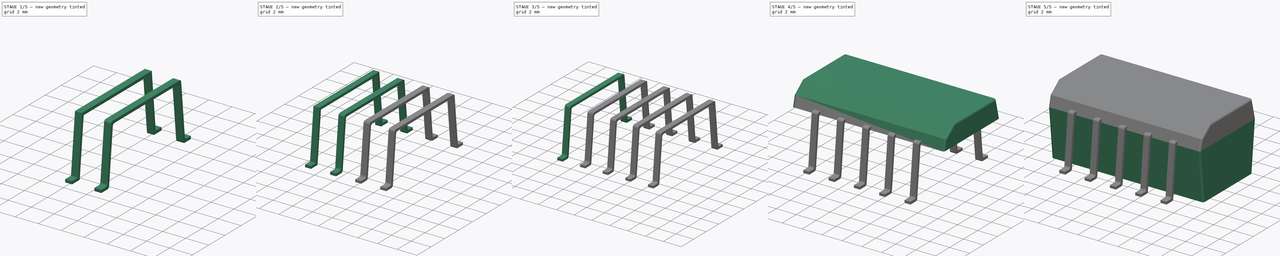
[diagram: build sequence overview — one tinted view per stage of 5, left to right]
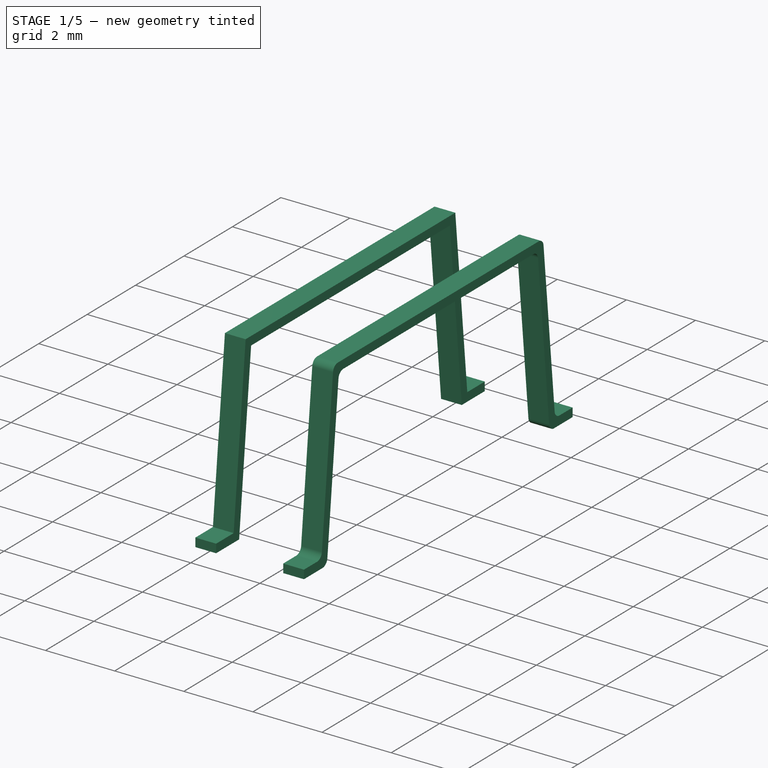
[diagram: stage 1 of 5 — iso view after this stage's code; geometry added in this stage tinted green]
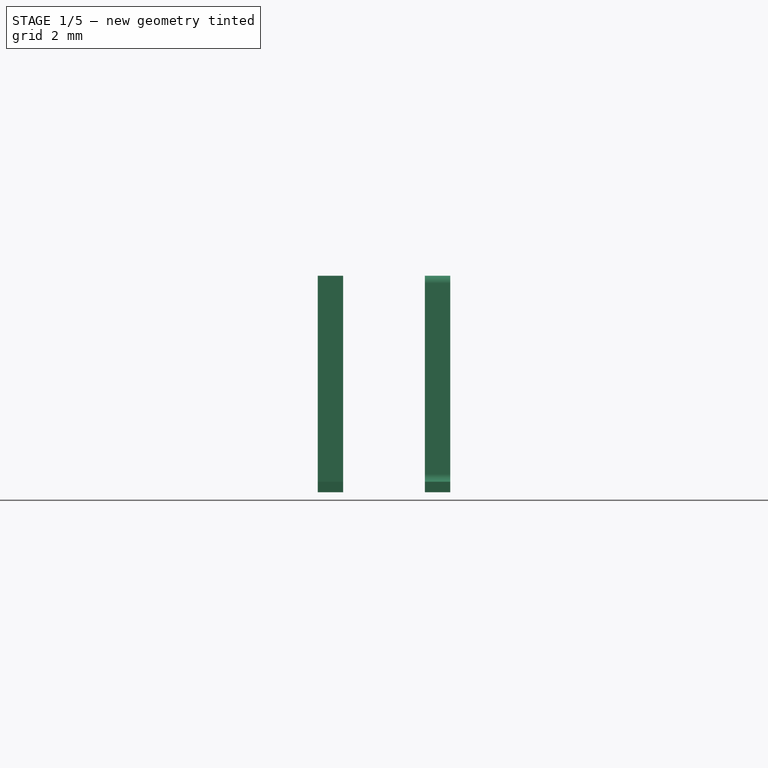
[diagram: stage 1 of 5 — front view after this stage's code; geometry added in this stage tinted green]
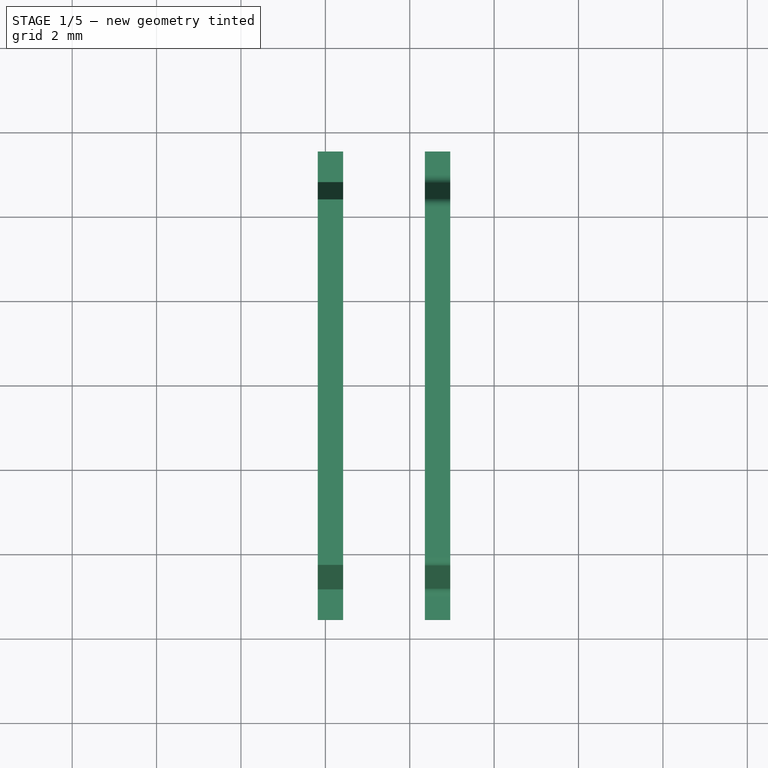
[diagram: stage 1 of 5 — top view after this stage's code; geometry added in this stage tinted green]
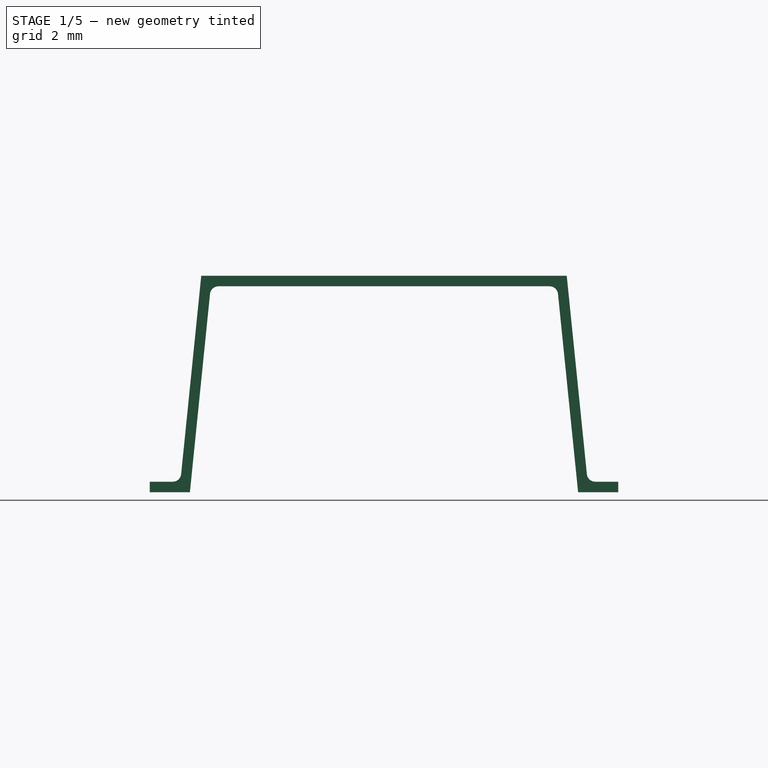
[diagram: stage 1 of 5 — right view after this stage's code; geometry added in this stage tinted green]
FCSTD DOCUMENT  (FreeCAD 0.16R6433 (Git))
Label: TSM-2415D
License: All rights reserved
LicenseURL: http://en.wikipedia.org/wiki/All_rights_reserved
objects: PartDesign::Fillet×8, Sketcher::SketchObject×7, PartDesign::Pad×7, Part::Part2DObjectPython×3, PartDesign::Chamfer×1, Part::MultiFuse×1
note: 34 computed .brp shape members not serialized (recipe doc carries the construction recipe); baked Part::Feature solids carry a one-line shape summary decoded from their .brp

FEATURE [Sketcher::SketchObject] Sketch005
  Placement = pos=(10.12,0,0) rot=(0.57735,0.57735,0.57735;2.0944rad)
  sketch-geometry (13):
    g0: LineSegment StartX=-5.55 StartY=0.25 StartZ=0 EndX=-4.82593 EndY=0.25 EndZ=0
    g1: LineSegment StartX=-4.82593 StartY=0.25 StartZ=0 EndX=-4.33094 EndY=5.1304 EndZ=0
    g2: LineSegment StartX=-4.33094 StartY=5.1304 StartZ=0 EndX=4.33094 EndY=5.1304 EndZ=0
    g3: LineSegment StartX=4.33094 StartY=5.1304 StartZ=0 EndX=4.82593 EndY=0.25 EndZ=0
    g4: LineSegment StartX=4.82593 StartY=0.25 StartZ=0 EndX=5.55 EndY=0.25 EndZ=0
    g5: LineSegment StartX=5.55 StartY=0.25 StartZ=0 EndX=5.55 EndY=0 EndZ=0
    g6: LineSegment StartX=5.55 StartY=0 StartZ=0 EndX=4.6 EndY=0 EndZ=0
    g7: LineSegment StartX=4.6 StartY=0 StartZ=0 EndX=4.10501 EndY=4.8804 EndZ=0
    g8: LineSegment StartX=4.10501 StartY=4.8804 StartZ=0 EndX=-4.10501 EndY=4.8804 EndZ=0
    g9: LineSegment StartX=-4.10501 StartY=4.8804 StartZ=0 EndX=-4.6 EndY=0 EndZ=0
    g10: LineSegment StartX=-4.6 StartY=0 StartZ=0 EndX=-5.55 EndY=0 EndZ=0
    g11: LineSegment StartX=-5.55 StartY=0 StartZ=0 EndX=-5.55 EndY=0.25 EndZ=0
    g12: LineSegment [constr] StartX=-4.44066 StartY=1.57101 StartZ=0 EndX=-4.68939 EndY=1.59623 EndZ=0
  constraints (32):
    c: Coincident(g0,g1)
    c: Coincident(g1,g2)
    c: Coincident(g2,g3)
    c: Coincident(g3,g4)
    c: Coincident(g4,g5)
    c: Coincident(g5,g6)
    c: Coincident(g6,g7)
    c: Coincident(g7,g8)
    c: Coincident(g8,g9)
    c: Coincident(g9,g10)
    c: Coincident(g10,g11)
    c: Coincident(g11,g0)
    c: Vertical(g11)
    c: Vertical(g5)
    c: Symmetric(g6,g9,g-2)
    c: PointOnObject(g9,g-1)
    c: DistanceX(g9,g6) = 9.2
    c: Symmetric(g8,g7,g-2)
    c: Symmetric(g1,g2,g-2)
    c: Symmetric(g0,g3,g-2)
    c: Horizontal(g0)
    c: Symmetric(g0,g4,g-2)
    c: Horizontal(g10)
    c: Symmetric(g5,g10,g-2)
    c: DistanceX(g10,g5) = 11.1
    c: DistanceY(g11) = 0.25
    c: DistanceY(g8,g1) = 0.25
    c: PointOnObject(g12,g1)
    c: Perpendicular(g1,g12)
    c: PointOnObject(g12,g9)
    c: Parallel(g9,g1)
    c: Distance(g12) = 0.25
FEATURE [PartDesign::Pad] Pad005
  Length = 0.6
  Length2 = 100
  Midplane = true
  Placement = pos=(10.12,0,0) rot=(0.57735,0.57735,0.57735;2.0944rad)
  Sketch = -> Sketch005
  Type = 0
FEATURE [Sketcher::SketchObject] Sketch006
  Placement = pos=(12.66,0,0) rot=(0.57735,0.57735,0.57735;2.0944rad)
  sketch-geometry (13):
    g0: LineSegment StartX=-5.55 StartY=0.25 StartZ=0 EndX=-4.82593 EndY=0.25 EndZ=0
    g1: LineSegment StartX=-4.82593 StartY=0.25 StartZ=0 EndX=-4.33094 EndY=5.1304 EndZ=0
    g2: LineSegment StartX=-4.33094 StartY=5.1304 StartZ=0 EndX=4.33094 EndY=5.1304 EndZ=0
    g3: LineSegment StartX=4.33094 StartY=5.1304 StartZ=0 EndX=4.82593 EndY=0.25 EndZ=0
    g4: LineSegment StartX=4.82593 StartY=0.25 StartZ=0 EndX=5.55 EndY=0.25 EndZ=0
    g5: LineSegment StartX=5.55 StartY=0.25 StartZ=0 EndX=5.55 EndY=0 EndZ=0
    g6: LineSegment StartX=5.55 StartY=0 StartZ=0 EndX=4.6 EndY=0 EndZ=0
    g7: LineSegment StartX=4.6 StartY=0 StartZ=0 EndX=4.10501 EndY=4.8804 EndZ=0
    g8: LineSegment StartX=4.10501 StartY=4.8804 StartZ=0 EndX=-4.10501 EndY=4.8804 EndZ=0
    g9: LineSegment StartX=-4.10501 StartY=4.8804 StartZ=0 EndX=-4.6 EndY=0 EndZ=0
    g10: LineSegment StartX=-4.6 StartY=0 StartZ=0 EndX=-5.55 EndY=0 EndZ=0
    g11: LineSegment StartX=-5.55 StartY=0 StartZ=0 EndX=-5.55 EndY=0.25 EndZ=0
    g12: LineSegment [constr] StartX=-4.44066 StartY=1.57101 StartZ=0 EndX=-4.68939 EndY=1.59623 EndZ=0
  constraints (32):
    c: Coincident(g0,g1)
    c: Coincident(g1,g2)
    c: Coincident(g2,g3)
    c: Coincident(g3,g4)
    c: Coincident(g4,g5)
    c: Coincident(g5,g6)
    c: Coincident(g6,g7)
    c: Coincident(g7,g8)
    c: Coincident(g8,g9)
    c: Coincident(g9,g10)
    c: Coincident(g10,g11)
    c: Coincident(g11,g0)
    c: Vertical(g11)
    c: Vertical(g5)
    c: Symmetric(g6,g9,g-2)
    c: PointOnObject(g9,g-1)
    c: DistanceX(g9,g6) = 9.2
    c: Symmetric(g8,g7,g-2)
    c: Symmetric(g1,g2,g-2)
    c: Symmetric(g0,g3,g-2)
    c: Horizontal(g0)
    c: Symmetric(g0,g4,g-2)
    c: Horizontal(g10)
    c: Symmetric(g5,g10,g-2)
    c: DistanceX(g10,g5) = 11.1
    c: DistanceY(g11) = 0.25
    c: DistanceY(g8,g1) = 0.25
    c: PointOnObject(g12,g1)
    c: Perpendicular(g1,g12)
    c: PointOnObject(g12,g9)
    c: Parallel(g9,g1)
    c: Distance(g12) = 0.25
FEATURE [PartDesign::Pad] Pad006
  Length = 0.6
  Length2 = 100
  Midplane = true
  Placement = pos=(12.66,0,0) rot=(0.57735,0.57735,0.57735;2.0944rad)
  Sketch = -> Sketch006
  Type = 0
FEATURE [PartDesign::Fillet] Fillet007  label="patilla004"
  Base = -> Pad006 [Edge8,Edge5,Edge23,Edge26,Edge20,Edge29,Edge11,Edge2]
  Placement = pos=(12.66,0,0) rot=(0.57735,0.57735,0.57735;2.0944rad)
  Radius = 0.2
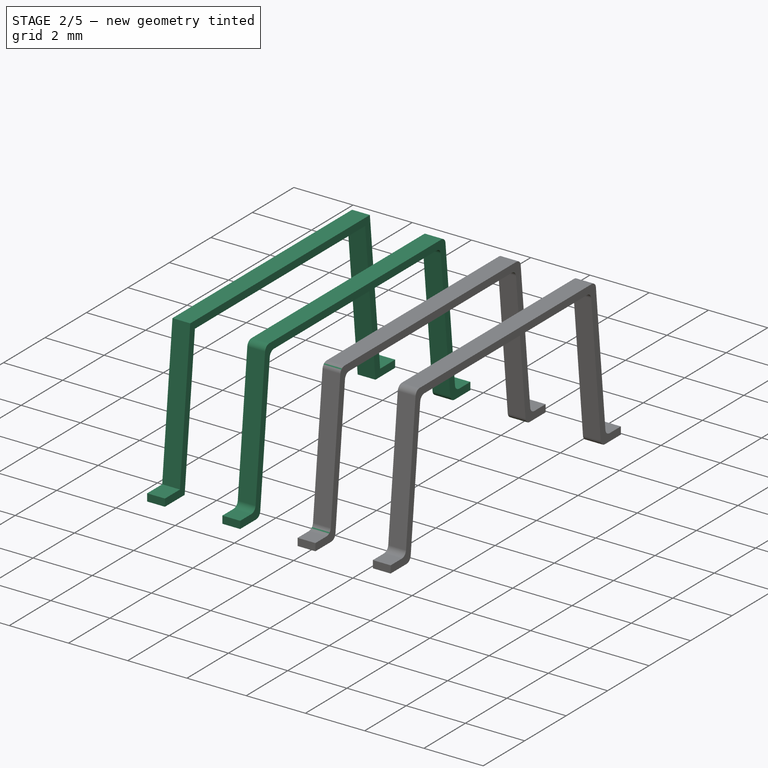
[diagram: stage 2 of 5 — iso view after this stage's code; geometry added in this stage tinted green]
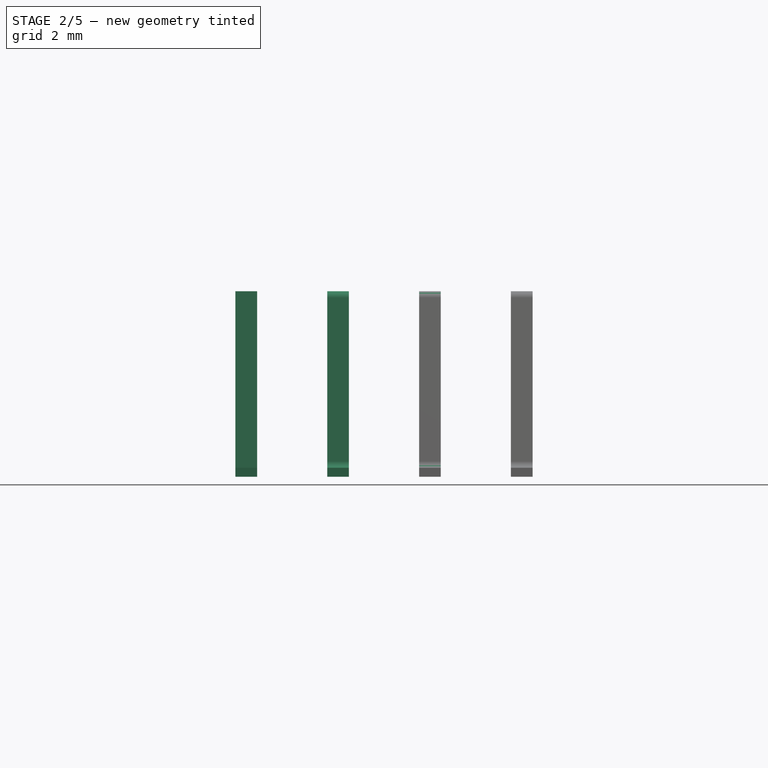
[diagram: stage 2 of 5 — front view after this stage's code; geometry added in this stage tinted green]
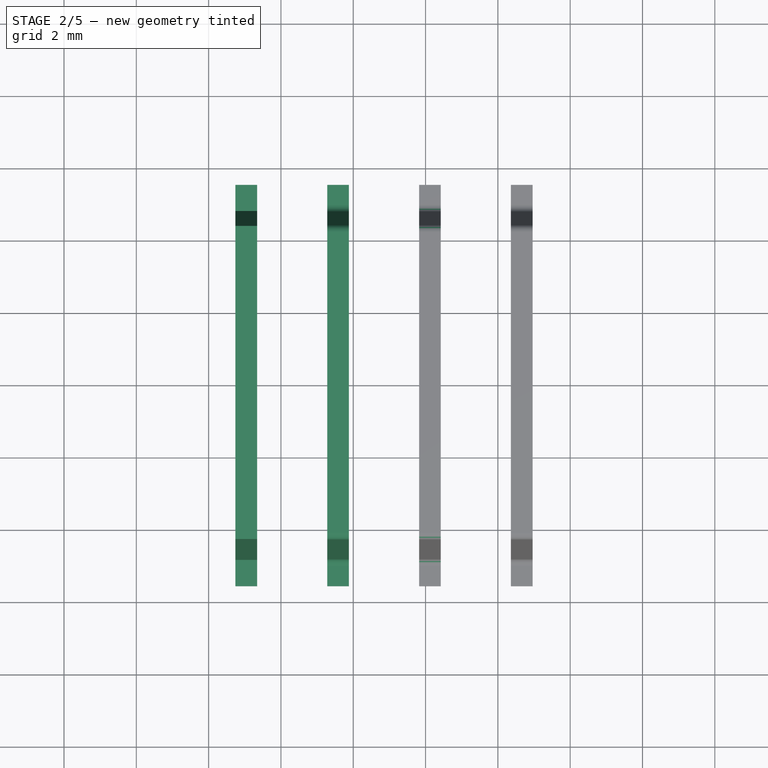
[diagram: stage 2 of 5 — top view after this stage's code; geometry added in this stage tinted green]
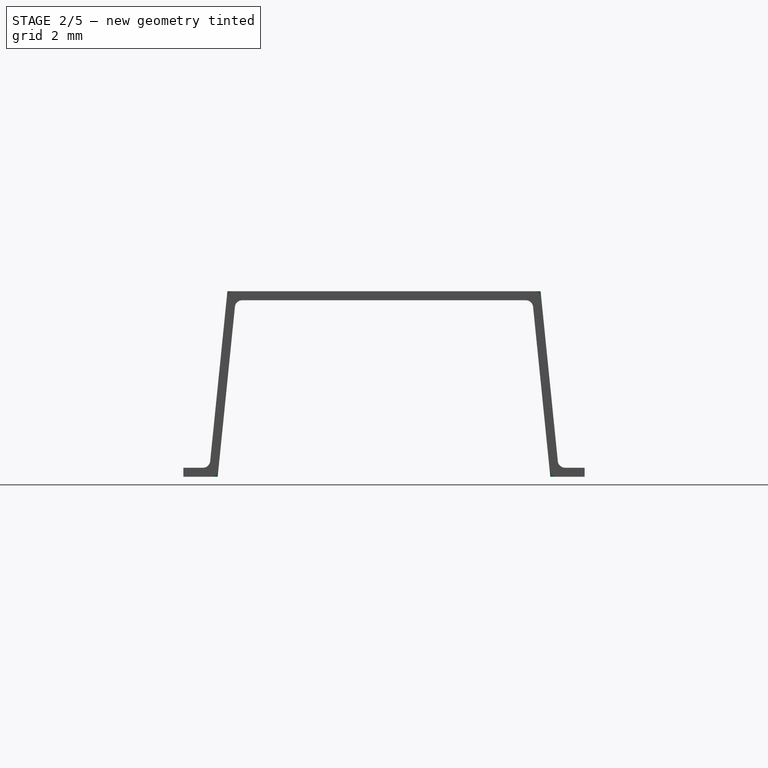
[diagram: stage 2 of 5 — right view after this stage's code; geometry added in this stage tinted green]
FEATURE [Sketcher::SketchObject] Sketch003
  Placement = pos=(5.04,0,0) rot=(0.57735,0.57735,0.57735;2.0944rad)
  sketch-geometry (13):
    g0: LineSegment StartX=-5.55 StartY=0.25 StartZ=0 EndX=-4.82593 EndY=0.25 EndZ=0
    g1: LineSegment StartX=-4.82593 StartY=0.25 StartZ=0 EndX=-4.33094 EndY=5.1304 EndZ=0
    g2: LineSegment StartX=-4.33094 StartY=5.1304 StartZ=0 EndX=4.33094 EndY=5.1304 EndZ=0
    g3: LineSegment StartX=4.33094 StartY=5.1304 StartZ=0 EndX=4.82593 EndY=0.25 EndZ=0
    g4: LineSegment StartX=4.82593 StartY=0.25 StartZ=0 EndX=5.55 EndY=0.25 EndZ=0
    g5: LineSegment StartX=5.55 StartY=0.25 StartZ=0 EndX=5.55 EndY=0 EndZ=0
    g6: LineSegment StartX=5.55 StartY=0 StartZ=0 EndX=4.6 EndY=0 EndZ=0
    g7: LineSegment StartX=4.6 StartY=0 StartZ=0 EndX=4.10501 EndY=4.8804 EndZ=0
    g8: LineSegment StartX=4.10501 StartY=4.8804 StartZ=0 EndX=-4.10501 EndY=4.8804 EndZ=0
    g9: LineSegment StartX=-4.10501 StartY=4.8804 StartZ=0 EndX=-4.6 EndY=0 EndZ=0
    g10: LineSegment StartX=-4.6 StartY=0 StartZ=0 EndX=-5.55 EndY=0 EndZ=0
    g11: LineSegment StartX=-5.55 StartY=0 StartZ=0 EndX=-5.55 EndY=0.25 EndZ=0
    g12: LineSegment [constr] StartX=-4.44066 StartY=1.57101 StartZ=0 EndX=-4.68939 EndY=1.59623 EndZ=0
  constraints (32):
    c: Coincident(g0,g1)
    c: Coincident(g1,g2)
    c: Coincident(g2,g3)
    c: Coincident(g3,g4)
    c: Coincident(g4,g5)
    c: Coincident(g5,g6)
    c: Coincident(g6,g7)
    c: Coincident(g7,g8)
    c: Coincident(g8,g9)
    c: Coincident(g9,g10)
    c: Coincident(g10,g11)
    c: Coincident(g11,g0)
    c: Vertical(g11)
    c: Vertical(g5)
    c: Symmetric(g6,g9,g-2)
    c: PointOnObject(g9,g-1)
    c: DistanceX(g9,g6) = 9.2
    c: Symmetric(g8,g7,g-2)
    c: Symmetric(g1,g2,g-2)
    c: Symmetric(g0,g3,g-2)
    c: Horizontal(g0)
    c: Symmetric(g0,g4,g-2)
    c: Horizontal(g10)
    c: Symmetric(g5,g10,g-2)
    c: DistanceX(g10,g5) = 11.1
    c: DistanceY(g11) = 0.25
    c: DistanceY(g8,g1) = 0.25
    c: PointOnObject(g12,g1)
    c: Perpendicular(g1,g12)
    c: PointOnObject(g12,g9)
    c: Parallel(g9,g1)
    c: Distance(g12) = 0.25
FEATURE [PartDesign::Pad] Pad003
  Length = 0.6
  Length2 = 100
  Midplane = true
  Placement = pos=(5.04,0,0) rot=(0.57735,0.57735,0.57735;2.0944rad)
  Sketch = -> Sketch003
  Type = 0
FEATURE [Sketcher::SketchObject] Sketch004
  Placement = pos=(7.58,0,0) rot=(0.57735,0.57735,0.57735;2.0944rad)
  sketch-geometry (13):
    g0: LineSegment StartX=-5.55 StartY=0.25 StartZ=0 EndX=-4.82593 EndY=0.25 EndZ=0
    g1: LineSegment StartX=-4.82593 StartY=0.25 StartZ=0 EndX=-4.33094 EndY=5.1304 EndZ=0
    g2: LineSegment StartX=-4.33094 StartY=5.1304 StartZ=0 EndX=4.33094 EndY=5.1304 EndZ=0
    g3: LineSegment StartX=4.33094 StartY=5.1304 StartZ=0 EndX=4.82593 EndY=0.25 EndZ=0
    g4: LineSegment StartX=4.82593 StartY=0.25 StartZ=0 EndX=5.55 EndY=0.25 EndZ=0
    g5: LineSegment StartX=5.55 StartY=0.25 StartZ=0 EndX=5.55 EndY=0 EndZ=0
    g6: LineSegment StartX=5.55 StartY=0 StartZ=0 EndX=4.6 EndY=0 EndZ=0
    g7: LineSegment StartX=4.6 StartY=0 StartZ=0 EndX=4.10501 EndY=4.8804 EndZ=0
    g8: LineSegment StartX=4.10501 StartY=4.8804 StartZ=0 EndX=-4.10501 EndY=4.8804 EndZ=0
    g9: LineSegment StartX=-4.10501 StartY=4.8804 StartZ=0 EndX=-4.6 EndY=0 EndZ=0
    g10: LineSegment StartX=-4.6 StartY=0 StartZ=0 EndX=-5.55 EndY=0 EndZ=0
    g11: LineSegment StartX=-5.55 StartY=0 StartZ=0 EndX=-5.55 EndY=0.25 EndZ=0
    g12: LineSegment [constr] StartX=-4.44066 StartY=1.57101 StartZ=0 EndX=-4.68939 EndY=1.59623 EndZ=0
  constraints (32):
    c: Coincident(g0,g1)
    c: Coincident(g1,g2)
    c: Coincident(g2,g3)
    c: Coincident(g3,g4)
    c: Coincident(g4,g5)
    c: Coincident(g5,g6)
    c: Coincident(g6,g7)
    c: Coincident(g7,g8)
    c: Coincident(g8,g9)
    c: Coincident(g9,g10)
    c: Coincident(g10,g11)
    c: Coincident(g11,g0)
    c: Vertical(g11)
    c: Vertical(g5)
    c: Symmetric(g6,g9,g-2)
    c: PointOnObject(g9,g-1)
    c: DistanceX(g9,g6) = 9.2
    c: Symmetric(g8,g7,g-2)
    c: Symmetric(g1,g2,g-2)
    c: Symmetric(g0,g3,g-2)
    c: Horizontal(g0)
    c: Symmetric(g0,g4,g-2)
    c: Horizontal(g10)
    c: Symmetric(g5,g10,g-2)
    c: DistanceX(g10,g5) = 11.1
    c: DistanceY(g11) = 0.25
    c: DistanceY(g8,g1) = 0.25
    c: PointOnObject(g12,g1)
    c: Perpendicular(g1,g12)
    c: PointOnObject(g12,g9)
    c: Parallel(g9,g1)
    c: Distance(g12) = 0.25
FEATURE [PartDesign::Pad] Pad004
  Length = 0.6
  Length2 = 100
  Midplane = true
  Placement = pos=(7.58,0,0) rot=(0.57735,0.57735,0.57735;2.0944rad)
  Sketch = -> Sketch004
  Type = 0
FEATURE [PartDesign::Fillet] Fillet005  label="patilla002"
  Base = -> Pad004 [Edge8,Edge5,Edge23,Edge26,Edge20,Edge29,Edge11,Edge2]
  Placement = pos=(7.58,0,0) rot=(0.57735,0.57735,0.57735;2.0944rad)
  Radius = 0.2
FEATURE [PartDesign::Fillet] Fillet006  label="patilla003"
  Base = -> Pad005 [Edge8,Edge5,Edge23,Edge26,Edge20,Edge29,Edge11,Edge2]
  Placement = pos=(10.12,0,0) rot=(0.57735,0.57735,0.57735;2.0944rad)
  Radius = 0.2
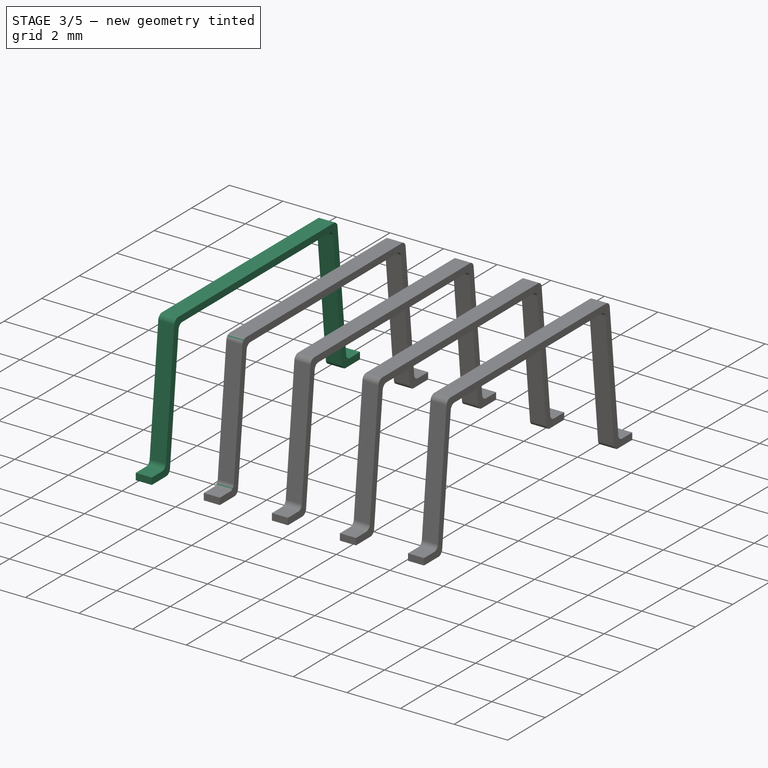
[diagram: stage 3 of 5 — iso view after this stage's code; geometry added in this stage tinted green]
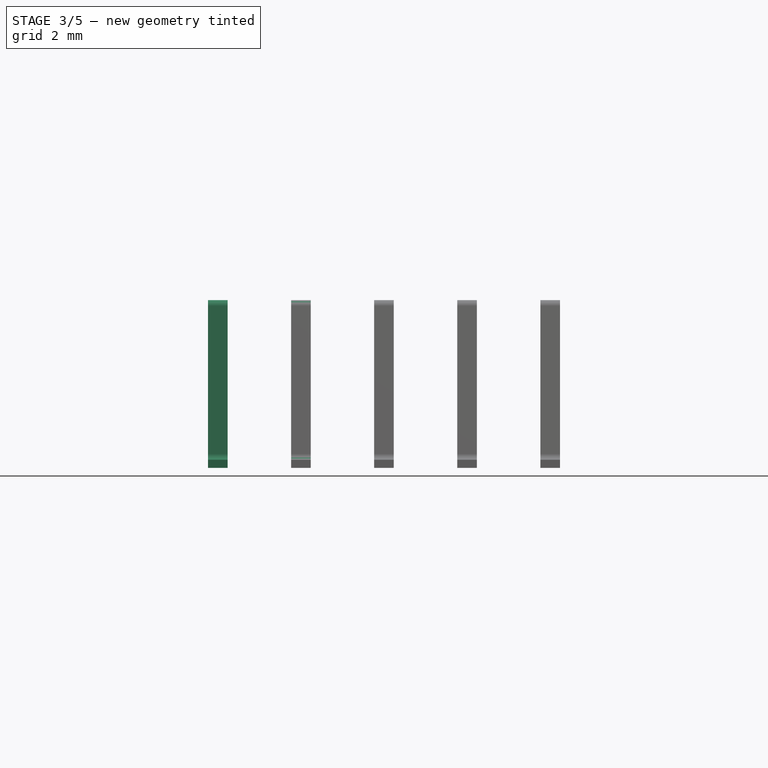
[diagram: stage 3 of 5 — front view after this stage's code; geometry added in this stage tinted green]
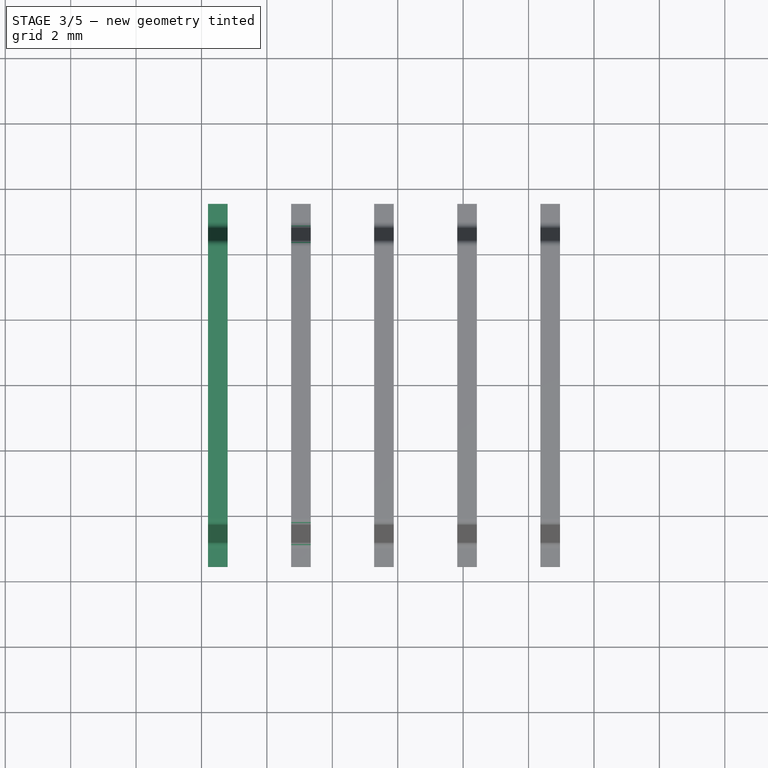
[diagram: stage 3 of 5 — top view after this stage's code; geometry added in this stage tinted green]
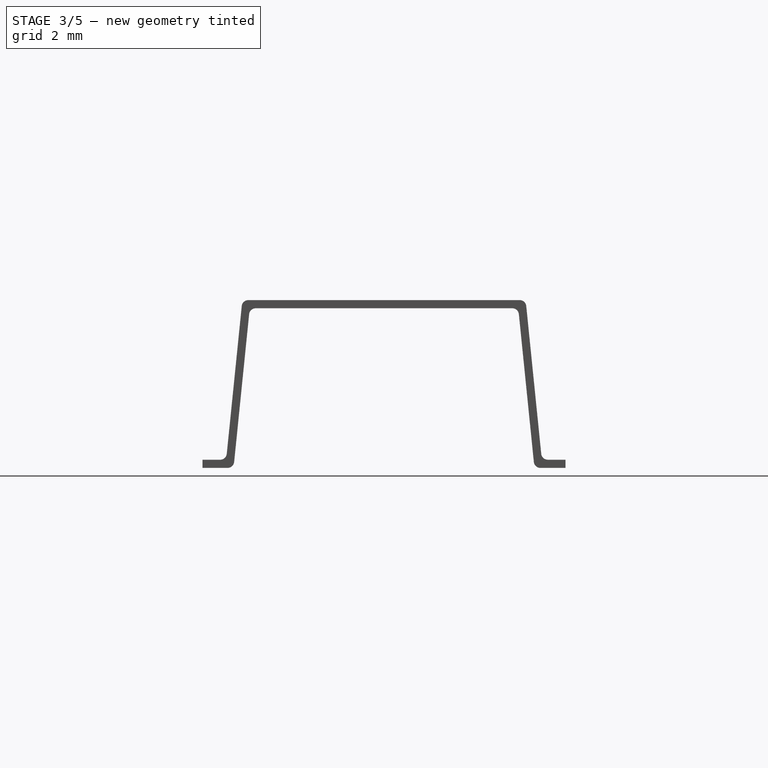
[diagram: stage 3 of 5 — right view after this stage's code; geometry added in this stage tinted green]
FEATURE [Sketcher::SketchObject] Sketch002
  Placement = pos=(2.5,0,0) rot=(0.57735,0.57735,0.57735;2.0944rad)
  sketch-geometry (13):
    g0: LineSegment StartX=-5.55 StartY=0.25 StartZ=0 EndX=-4.82593 EndY=0.25 EndZ=0
    g1: LineSegment StartX=-4.82593 StartY=0.25 StartZ=0 EndX=-4.33094 EndY=5.1304 EndZ=0
    g2: LineSegment StartX=-4.33094 StartY=5.1304 StartZ=0 EndX=4.33094 EndY=5.1304 EndZ=0
    g3: LineSegment StartX=4.33094 StartY=5.1304 StartZ=0 EndX=4.82593 EndY=0.25 EndZ=0
    g4: LineSegment StartX=4.82593 StartY=0.25 StartZ=0 EndX=5.55 EndY=0.25 EndZ=0
    g5: LineSegment StartX=5.55 StartY=0.25 StartZ=0 EndX=5.55 EndY=0 EndZ=0
    g6: LineSegment StartX=5.55 StartY=0 StartZ=0 EndX=4.6 EndY=0 EndZ=0
    g7: LineSegment StartX=4.6 StartY=0 StartZ=0 EndX=4.10501 EndY=4.8804 EndZ=0
    g8: LineSegment StartX=4.10501 StartY=4.8804 StartZ=0 EndX=-4.10501 EndY=4.8804 EndZ=0
    g9: LineSegment StartX=-4.10501 StartY=4.8804 StartZ=0 EndX=-4.6 EndY=0 EndZ=0
    g10: LineSegment StartX=-4.6 StartY=0 StartZ=0 EndX=-5.55 EndY=0 EndZ=0
    g11: LineSegment StartX=-5.55 StartY=0 StartZ=0 EndX=-5.55 EndY=0.25 EndZ=0
    g12: LineSegment [constr] StartX=-4.44066 StartY=1.57101 StartZ=0 EndX=-4.68939 EndY=1.59623 EndZ=0
  constraints (32):
    c: Coincident(g0,g1)
    c: Coincident(g1,g2)
    c: Coincident(g2,g3)
    c: Coincident(g3,g4)
    c: Coincident(g4,g5)
    c: Coincident(g5,g6)
    c: Coincident(g6,g7)
    c: Coincident(g7,g8)
    c: Coincident(g8,g9)
    c: Coincident(g9,g10)
    c: Coincident(g10,g11)
    c: Coincident(g11,g0)
    c: Vertical(g11)
    c: Vertical(g5)
    c: Symmetric(g6,g9,g-2)
    c: PointOnObject(g9,g-1)
    c: DistanceX(g9,g6) = 9.2
    c: Symmetric(g8,g7,g-2)
    c: Symmetric(g1,g2,g-2)
    c: Symmetric(g0,g3,g-2)
    c: Horizontal(g0)
    c: Symmetric(g0,g4,g-2)
    c: Horizontal(g10)
    c: Symmetric(g5,g10,g-2)
    c: DistanceX(g10,g5) = 11.1
    c: DistanceY(g11) = 0.25
    c: DistanceY(g8,g1) = 0.25
    c: PointOnObject(g12,g1)
    c: Perpendicular(g1,g12)
    c: PointOnObject(g12,g9)
    c: Parallel(g9,g1)
    c: Distance(g12) = 0.25
FEATURE [PartDesign::Pad] Pad002
  Length = 0.6
  Length2 = 100
  Midplane = true
  Placement = pos=(2.5,0,0) rot=(0.57735,0.57735,0.57735;2.0944rad)
  Sketch = -> Sketch002
  Type = 0
FEATURE [PartDesign::Fillet] Fillet003  label="patilla"
  Base = -> Pad002 [Edge8,Edge5,Edge23,Edge26,Edge20,Edge29,Edge11,Edge2]
  Placement = pos=(2.5,0,0) rot=(0.57735,0.57735,0.57735;2.0944rad)
  Radius = 0.2
FEATURE [PartDesign::Fillet] Fillet004  label="patilla001"
  Base = -> Pad003 [Edge8,Edge5,Edge23,Edge26,Edge20,Edge29,Edge11,Edge2]
  Placement = pos=(5.04,0,0) rot=(0.57735,0.57735,0.57735;2.0944rad)
  Radius = 0.2
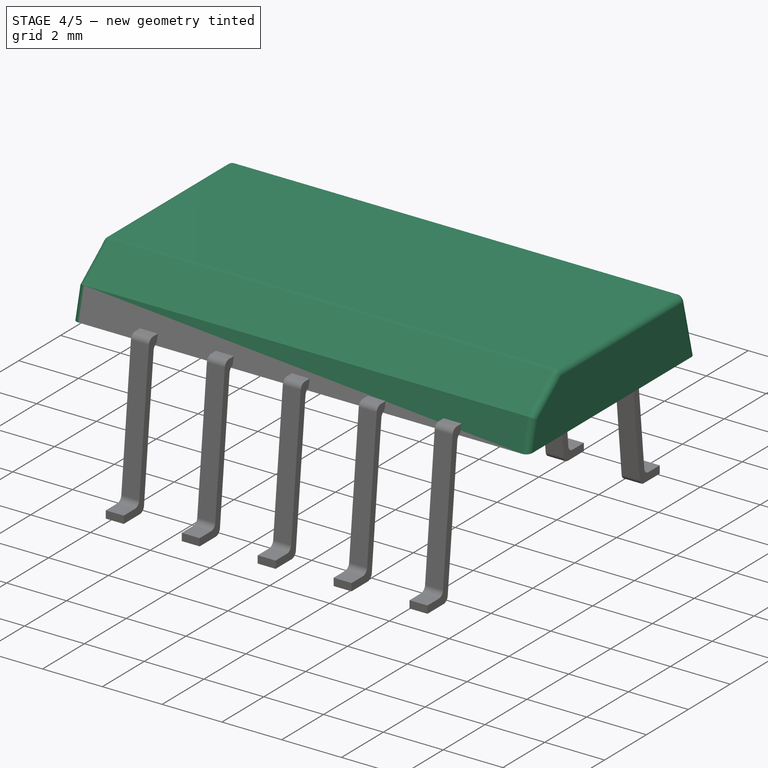
[diagram: stage 4 of 5 — iso view after this stage's code; geometry added in this stage tinted green]
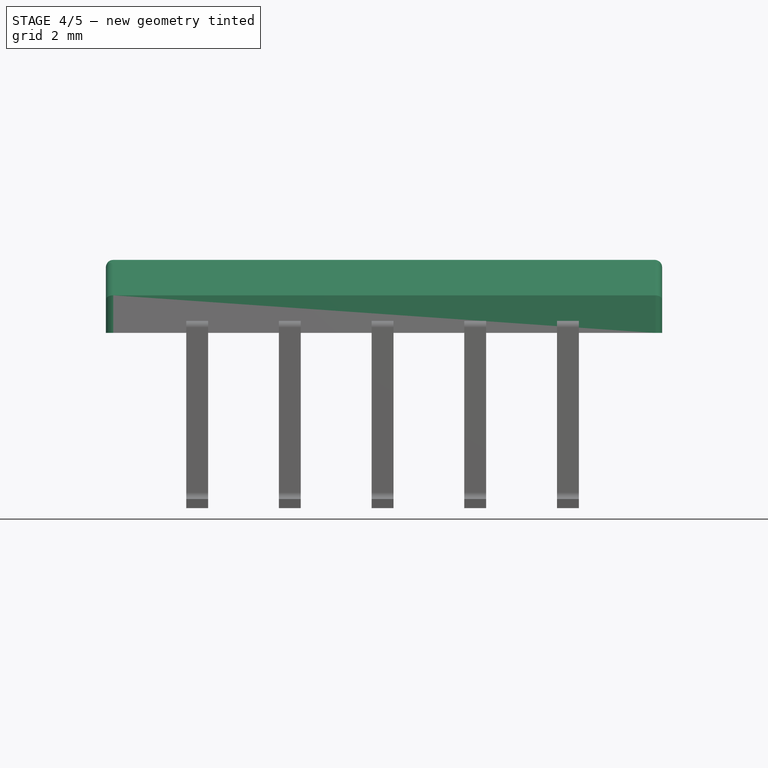
[diagram: stage 4 of 5 — front view after this stage's code; geometry added in this stage tinted green]
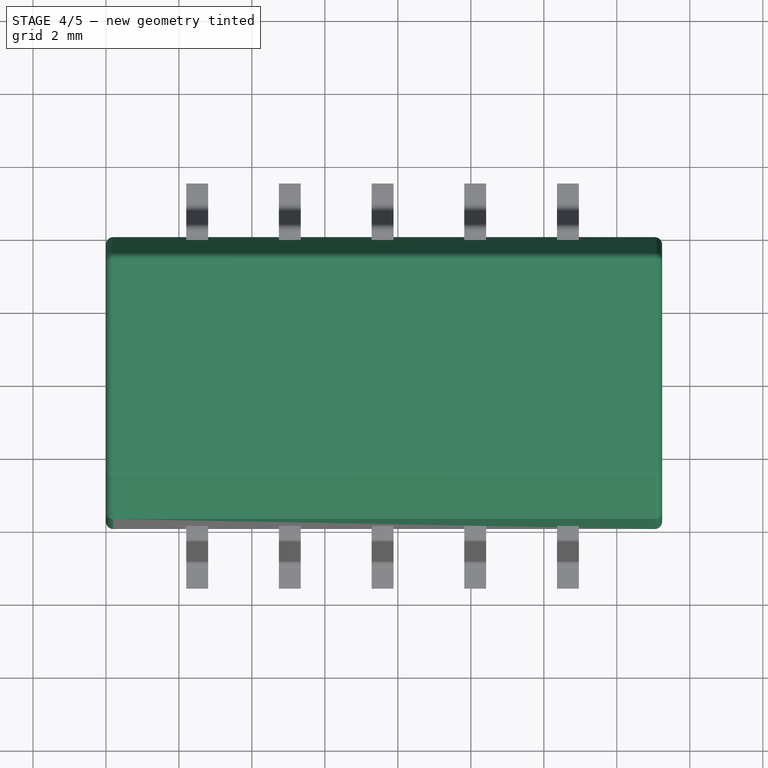
[diagram: stage 4 of 5 — top view after this stage's code; geometry added in this stage tinted green]
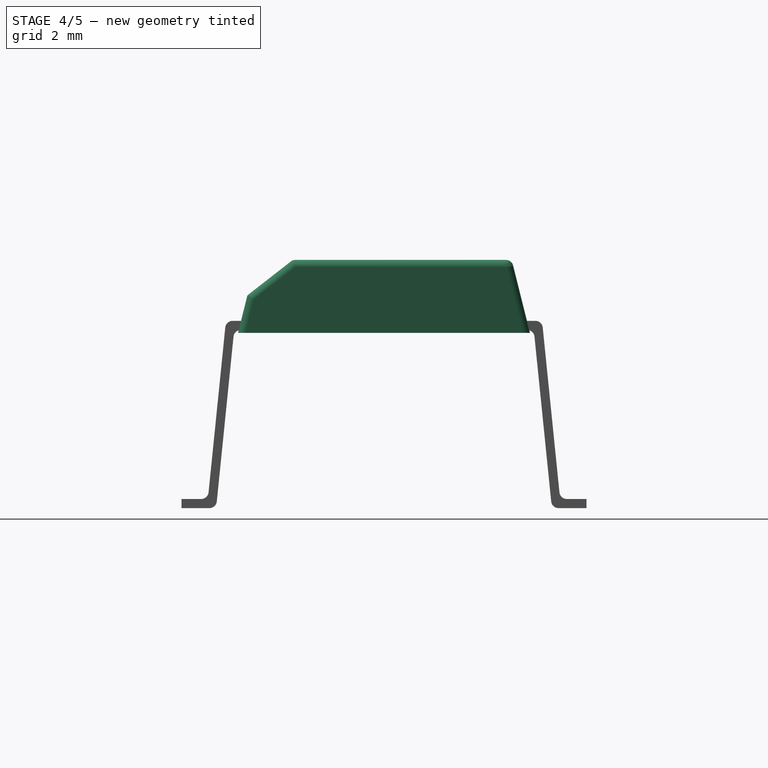
[diagram: stage 4 of 5 — right view after this stage's code; geometry added in this stage tinted green]
FEATURE [Sketcher::SketchObject] Sketch001
  Placement = pos=(0,0,0) rot=(0.57735,0.57735,0.57735;2.0944rad)
  sketch-geometry (4):
    g0: LineSegment StartX=-4 StartY=4.8 StartZ=0 EndX=4 EndY=4.8 EndZ=0
    g1: LineSegment StartX=4 StartY=4.8 StartZ=0 EndX=3.5 EndY=6.8 EndZ=0
    g2: LineSegment StartX=3.5 StartY=6.8 StartZ=0 EndX=-3.5 EndY=6.8 EndZ=0
    g3: LineSegment StartX=-3.5 StartY=6.8 StartZ=0 EndX=-4 EndY=4.8 EndZ=0
  constraints (10):
    c: Coincident(g0,g1)
    c: Coincident(g1,g2)
    c: Coincident(g2,g3)
    c: Coincident(g3,g0)
    c: Symmetric(g0,g0,g-2)
    c: Symmetric(g2,g1,g-2)
    c: DistanceX(g0) = 8
    c: DistanceY(g-1,g0) = 4.8
    c: DistanceY(g2,g0) = -2
    c: DistanceX(g2) = -7
FEATURE [PartDesign::Pad] Pad001
  Length = 15.24
  Length2 = 100
  Placement = pos=(0,0,0) rot=(0.57735,0.57735,0.57735;2.0944rad)
  Sketch = -> Sketch001
  Type = 0
FEATURE [PartDesign::Chamfer] Chamfer
  Base = -> Pad001 [Edge8]
  Placement = pos=(0,0,0) rot=(0.57735,0.57735,0.57735;2.0944rad)
  Size = 1
FEATURE [PartDesign::Fillet] Fillet001
  Base = -> Chamfer [Edge1,Edge2,Edge3,Edge4]
  Placement = pos=(0,0,0) rot=(0.57735,0.57735,0.57735;2.0944rad)
  Radius = 0.2
FEATURE [PartDesign::Fillet] Fillet002
  Base = -> Fillet001 [Edge21,Edge20,Edge17,Edge19,Edge25,Edge24]
  Placement = pos=(0,0,0) rot=(0.57735,0.57735,0.57735;2.0944rad)
  Radius = 0.2
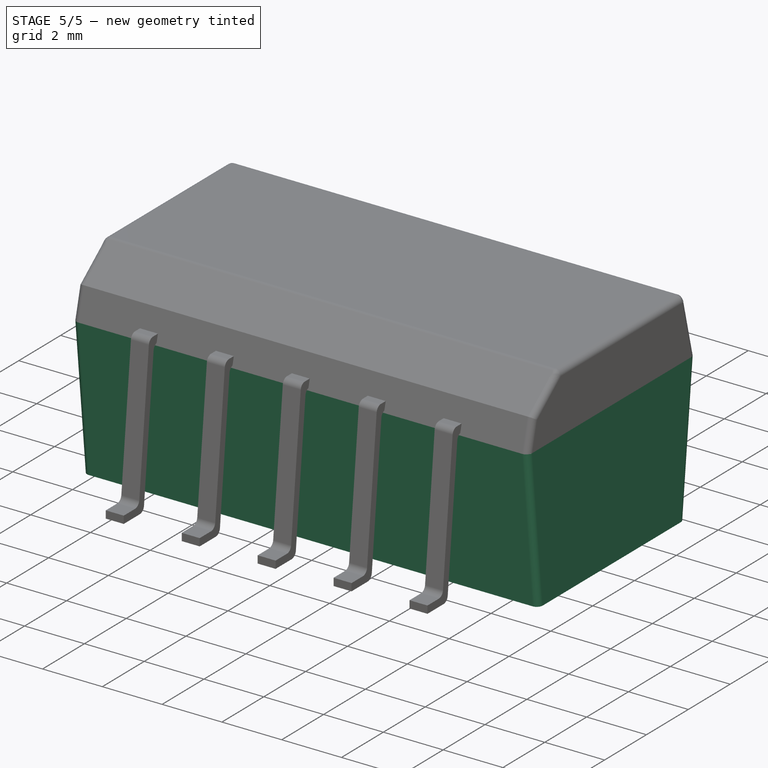
[diagram: stage 5 of 5 — iso view after this stage's code; geometry added in this stage tinted green]
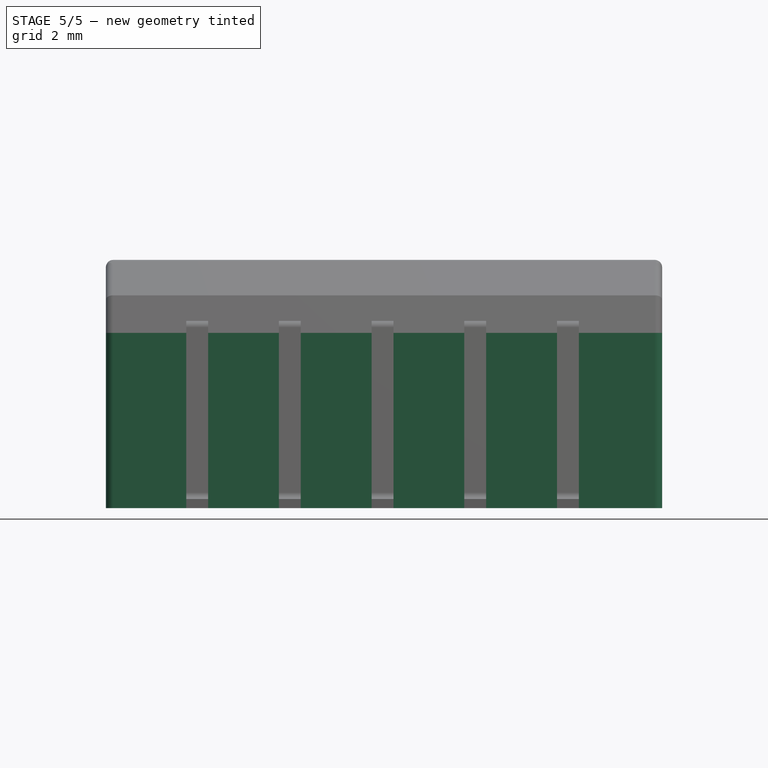
[diagram: stage 5 of 5 — front view after this stage's code; geometry added in this stage tinted green]
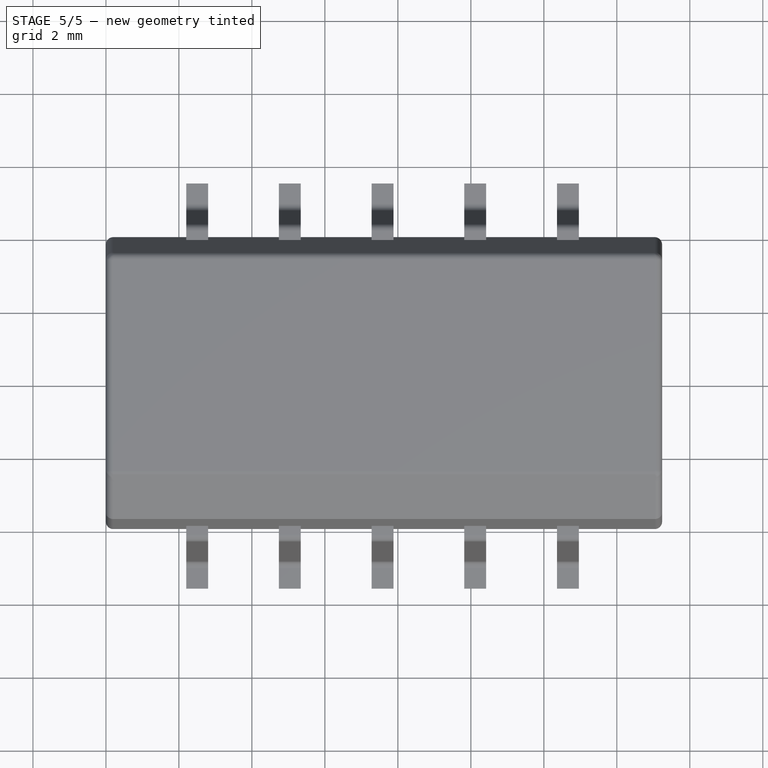
[diagram: stage 5 of 5 — top view after this stage's code; geometry added in this stage tinted green]
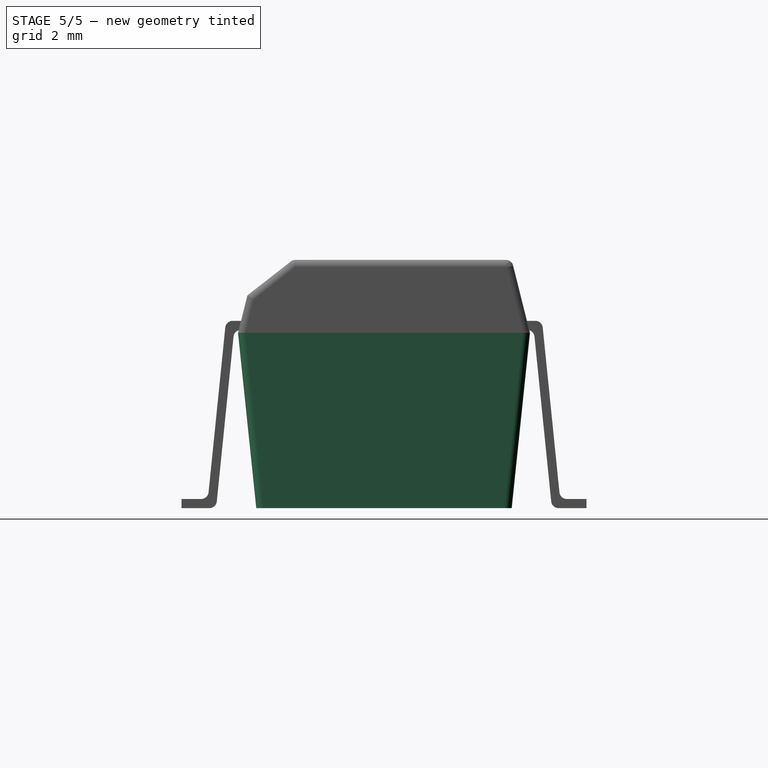
[diagram: stage 5 of 5 — right view after this stage's code; geometry added in this stage tinted green]
FEATURE [Sketcher::SketchObject] Sketch
  Placement = pos=(0,0,0) rot=(0.57735,0.57735,0.57735;2.0944rad)
  sketch-geometry (4):
    g0: LineSegment StartX=-4 StartY=4.8 StartZ=0 EndX=4 EndY=4.8 EndZ=0
    g1: LineSegment StartX=4 StartY=4.8 StartZ=0 EndX=3.5 EndY=0 EndZ=0
    g2: LineSegment StartX=3.5 StartY=0 StartZ=0 EndX=-3.5 EndY=0 EndZ=0
    g3: LineSegment StartX=-3.5 StartY=0 StartZ=0 EndX=-4 EndY=4.8 EndZ=0
  constraints (11):
    c: Coincident(g0,g1)
    c: Coincident(g1,g2)
    c: Coincident(g2,g3)
    c: Coincident(g3,g0)
    c: Horizontal(g2)
    c: PointOnObject(g2,g-1)
    c: Symmetric(g2,g1,g-2)
    c: Symmetric(g0,g0,g-2)
    c: DistanceX(g2) = -7
    c: DistanceX(g0) = 8
    c: DistanceY(g0,g2) = -4.8
FEATURE [PartDesign::Pad] Pad
  Length = 15.24
  Length2 = 100
  Placement = pos=(0,0,0) rot=(0.57735,0.57735,0.57735;2.0944rad)
  Sketch = -> Sketch
  Type = 0
FEATURE [PartDesign::Fillet] Fillet
  Base = -> Pad [Edge6,Edge7,Edge12,Edge11]
  Placement = pos=(0,0,0) rot=(0.57735,0.57735,0.57735;2.0944rad)
  Radius = 0.2
FEATURE [Part::MultiFuse] Fusion
  Shapes = -> [Fillet007,Fillet006,Fillet005,Fillet004,Fillet003,Fillet002,Fillet]
FEATURE [Part::Part2DObjectPython] ShapeString  # Draft 2D object (typed FeaturePython)
  FontFile = <userpath>/Documentos/KiCad/modelos/arial.ttf
  Placement = pos=(2.5,1.5,6.81) rot=(0,0,1;0rad)
  Size = 1
  String = TRACO
  Tracking = 0
FEATURE [Part::Part2DObjectPython] ShapeString001  # Draft 2D object (typed FeaturePython)
  FontFile = <userpath>/Documentos/KiCad/modelos/arial.ttf
  Placement = pos=(7.85478,1.5,6.81) rot=(0,0,1;0rad)
  Size = 1
  String = POWER
  Tracking = 0
FEATURE [Part::Part2DObjectPython] ShapeString002  # Draft 2D object (typed FeaturePython)
  FontFile = <userpath>/Documentos/KiCad/modelos/arial.ttf
  Placement = pos=(2.5,-1.2,6.81) rot=(0,0,1;0rad)
  Size = 1.5
  String = TSM-Series
  Tracking = 0
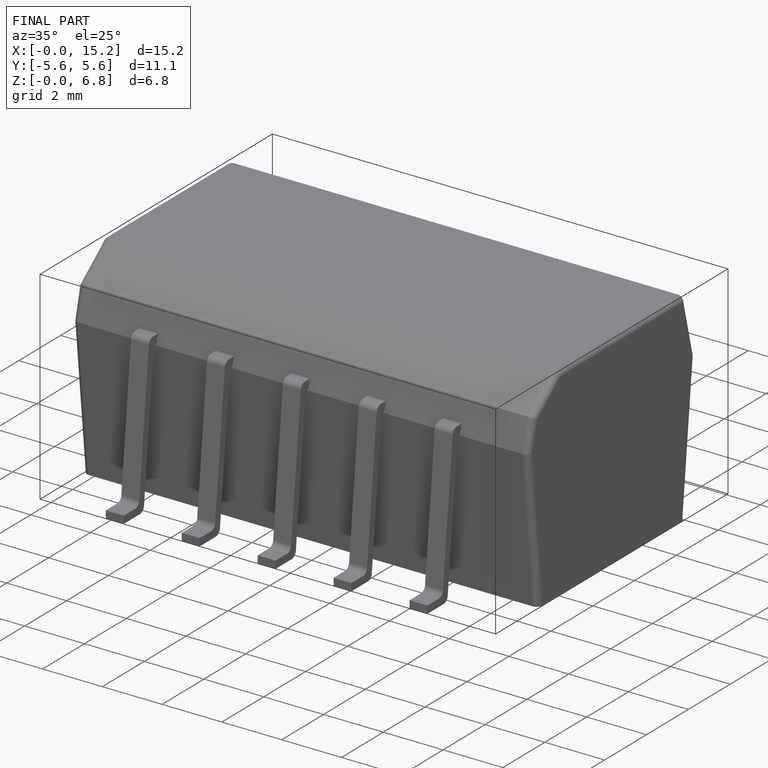
[diagram: finished part — iso view with bounding-box wireframe]
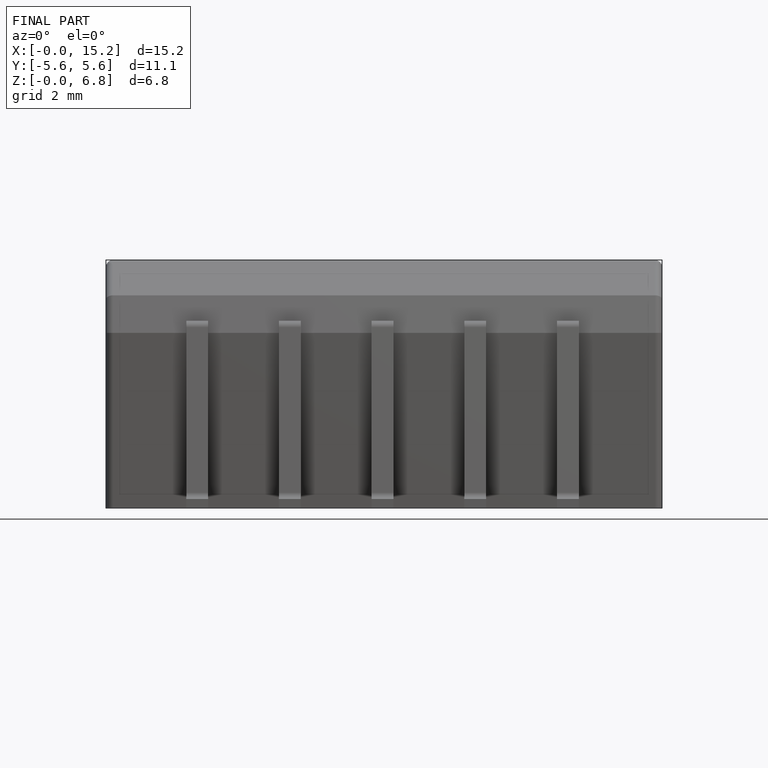
[diagram: finished part — front view with bounding-box wireframe]
